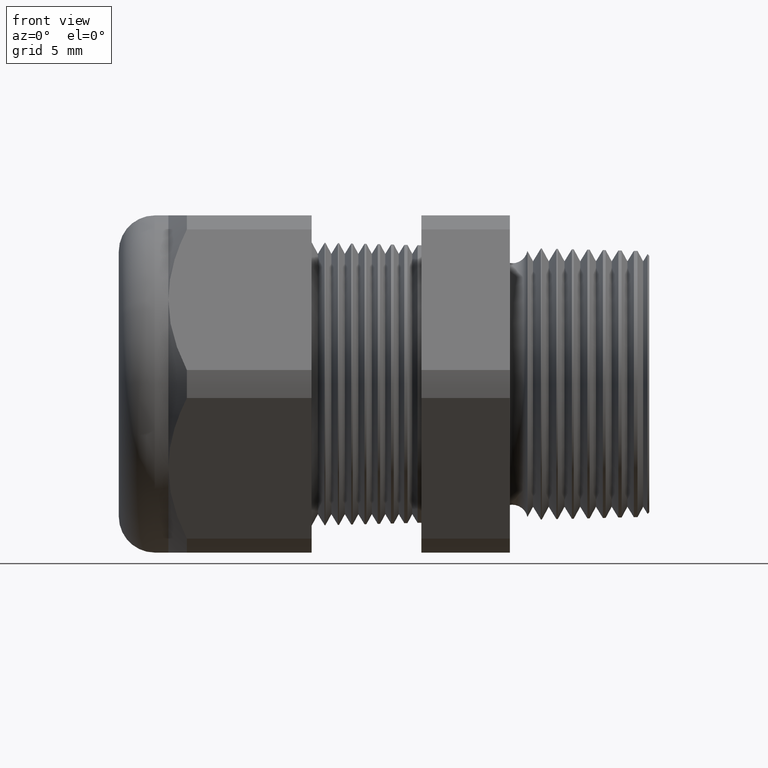
[diagram: clean part render]
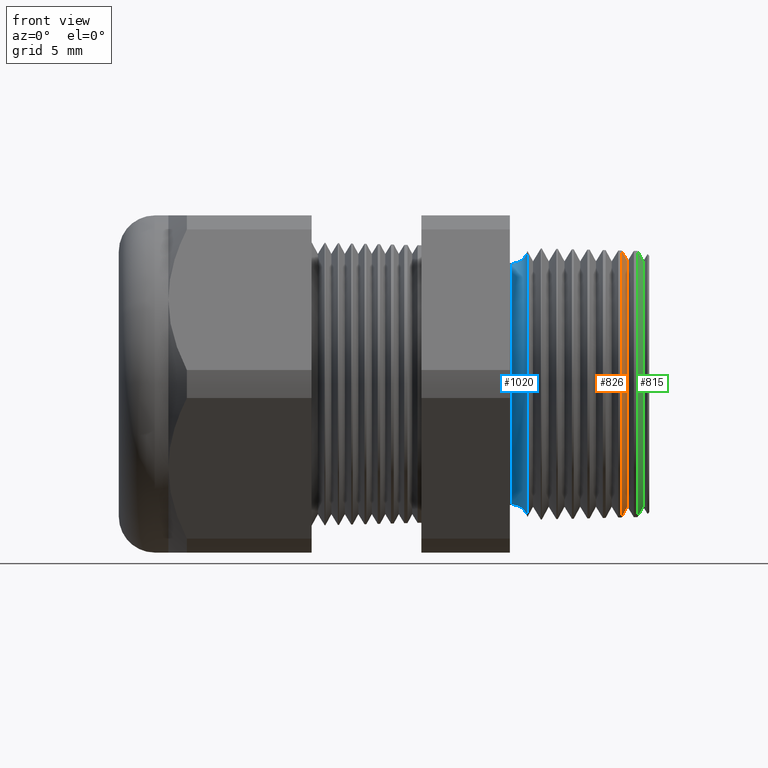
[diagram: same view with three faces highlighted in distinct colors, each labeled with its STEP entity id]
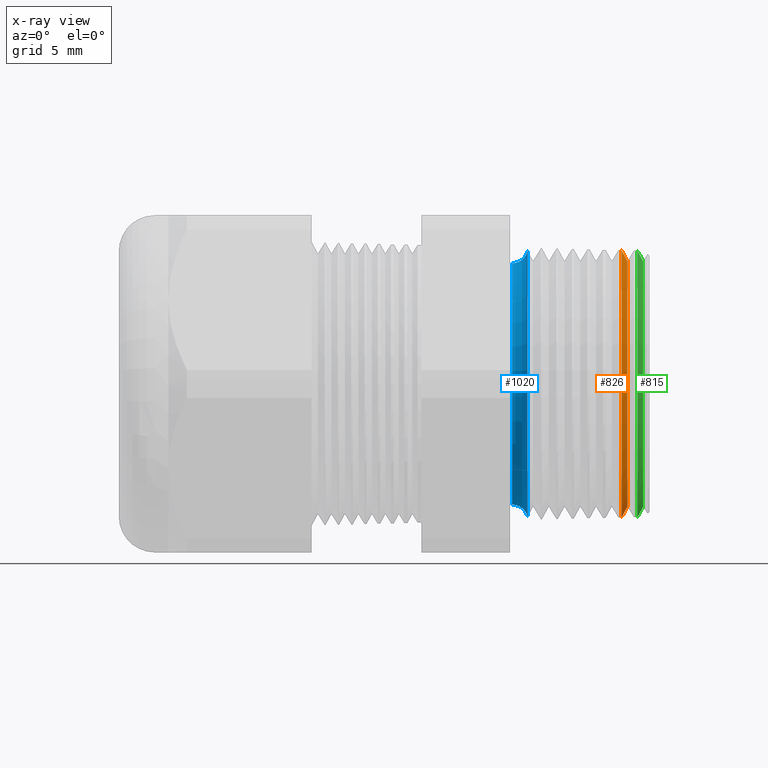
[diagram: x-ray of the same camera — body ghosted, the three highlighted faces saturated]
A machine part, front view with three faces highlighted in distinct colors.
The next image is the same camera in x-ray (body ghosted, the three faces saturated) — at least one of them is partly hidden behind the body in this view.
Their STEP definitions:

[orange] entity #826 — the highlighted conical surface has half-angle 61.5 deg.
#137 = EDGE_CURVE ( 'NONE', #181, #138, #1503, .T. ) ;
#138 = VERTEX_POINT ( 'NONE', #1494 ) ;
#141 = VERTEX_POINT ( 'NONE', #1488 ) ;
#143 = EDGE_CURVE ( 'NONE', #182, #141, #1487, .T. ) ;
#181 = VERTEX_POINT ( 'NONE', #1591 ) ;
#182 = VERTEX_POINT ( 'NONE', #1590 ) ;
#808 = ORIENTED_EDGE ( 'NONE', *, *, #4315, .T. ) ;
#826 = ADVANCED_FACE ( 'NONE', ( #2580 ), #2579, .T. ) ;
#827 = EDGE_LOOP ( 'NONE', ( #828, #829, #831, #808 ) ) ;
#828 = ORIENTED_EDGE ( 'NONE', *, *, #137, .F. ) ;
#829 = ORIENTED_EDGE ( 'NONE', *, *, #830, .F. ) ;
#830 = EDGE_CURVE ( 'NONE', #182, #181, #2574, .T. ) ;
#831 = ORIENTED_EDGE ( 'NONE', *, *, #143, .T. ) ;
#1484 = DIRECTION ( 'NONE',  ( -0.4771587602596187900, 0.0000000000000000000, 0.8788171126619597200 ) ) ;
#1485 = VECTOR ( 'NONE', #1484, 39.37007874015748900 ) ;
#1486 = CARTESIAN_POINT ( 'NONE',  ( -0.06499999999999996100, 0.0000000000000000000, 0.3034555137900915000 ) ) ;
#1487 = LINE ( 'NONE', #1486, #1485 ) ;
#1488 = CARTESIAN_POINT ( 'NONE',  ( -0.06146640013548344100, 0.0000000000000000000, 0.2969474324367333300 ) ) ;
#1494 = CARTESIAN_POINT ( 'NONE',  ( -0.06146640013548344100, 3.637715068184217400E-017, -0.2969474324367333300 ) ) ;
#1495 = DIRECTION ( 'NONE',  ( -0.4771587602596187900, 1.076240564057388000E-016, -0.8788171126619597200 ) ) ;
#1496 = VECTOR ( 'NONE', #1495, 39.37007874015748900 ) ;
#1497 = CARTESIAN_POINT ( 'NONE',  ( -0.06499999999999996100, 3.716258236466510600E-017, -0.3034555137900915000 ) ) ;
#1503 = LINE ( 'NONE', #1497, #1496 ) ;
#1590 = CARTESIAN_POINT ( 'NONE',  ( -0.04847073567907516500, 0.0000000000000000000, 0.2730123959962614800 ) ) ;
#1591 = CARTESIAN_POINT ( 'NONE',  ( -0.04847073567907516500, 3.489997397665207900E-017, -0.2730123959962614800 ) ) ;
#2571 = DIRECTION ( 'NONE',  ( 0.0000000000000000000, 0.0000000000000000000, -1.000000000000000000 ) ) ;
#2572 = DIRECTION ( 'NONE',  ( 1.000000000000000000, 0.0000000000000000000, 0.0000000000000000000 ) ) ;
#2573 = AXIS2_PLACEMENT_3D ( 'NONE', #2578, #2572, #2571 ) ;
#2574 = CIRCLE ( 'NONE', #2573, 0.2730123959962614800 ) ;
#2575 = DIRECTION ( 'NONE',  ( 0.0000000000000000000, 0.0000000000000000000, 1.000000000000000000 ) ) ;
#2576 = DIRECTION ( 'NONE',  ( -1.000000000000000000, 0.0000000000000000000, 0.0000000000000000000 ) ) ;
#2577 = AXIS2_PLACEMENT_3D ( 'NONE', #2585, #2576, #2575 ) ;
#2578 = CARTESIAN_POINT ( 'NONE',  ( -0.04847073567907516500, 0.0000000000000000000, 0.0000000000000000000 ) ) ;
#2579 = CONICAL_SURFACE ( 'NONE', #2577, 0.3034555137900915000, 1.073377489976501000 ) ;
#2580 = FACE_OUTER_BOUND ( 'NONE', #827, .T. ) ;
#2585 = CARTESIAN_POINT ( 'NONE',  ( -0.06499999999999996100, 0.0000000000000000000, 0.0000000000000000000 ) ) ;
#3794 = DIRECTION ( 'NONE',  ( 0.0000000000000000000, 0.0000000000000000000, 1.000000000000000000 ) ) ;
#3795 = DIRECTION ( 'NONE',  ( 1.000000000000000000, 0.0000000000000000000, 0.0000000000000000000 ) ) ;
#3796 = AXIS2_PLACEMENT_3D ( 'NONE', #3802, #3795, #3794 ) ;
#3797 = CIRCLE ( 'NONE', #3796, 0.2969474324367333300 ) ;
#3802 = CARTESIAN_POINT ( 'NONE',  ( -0.06146640013548344100, 0.0000000000000000000, 0.0000000000000000000 ) ) ;
#4315 = EDGE_CURVE ( 'NONE', #141, #138, #3797, .T. ) ;

[blue] entity #1020 — the highlighted toroidal blend (fillet) surface has major radius 7.7078 mm and minor (blend) radius 0.889 mm.
#1020 = ADVANCED_FACE ( 'NONE', ( #2944 ), #2939, .F. ) ;
#1021 = EDGE_LOOP ( 'NONE', ( #1022, #1023, #1025, #1026 ) ) ;
#1022 = ORIENTED_EDGE ( 'NONE', *, *, #1064, .T. ) ;
#1023 = ORIENTED_EDGE ( 'NONE', *, *, #1024, .T. ) ;
#1024 = EDGE_CURVE ( 'NONE', #1062, #1059, #2934, .T. ) ;
#1025 = ORIENTED_EDGE ( 'NONE', *, *, #1057, .F. ) ;
#1026 = ORIENTED_EDGE ( 'NONE', *, *, #1027, .F. ) ;
#1027 = EDGE_CURVE ( 'NONE', #1065, #1058, #2929, .T. ) ;
#1057 = EDGE_CURVE ( 'NONE', #1058, #1059, #3008, .T. ) ;
#1058 = VERTEX_POINT ( 'NONE', #3003 ) ;
#1059 = VERTEX_POINT ( 'NONE', #3002 ) ;
#1062 = VERTEX_POINT ( 'NONE', #2996 ) ;
#1064 = EDGE_CURVE ( 'NONE', #1065, #1062, #2995, .T. ) ;
#1065 = VERTEX_POINT ( 'NONE', #2990 ) ;
#2925 = DIRECTION ( 'NONE',  ( 0.0000000000000000000, 0.0000000000000000000, 1.000000000000000000 ) ) ;
#2926 = DIRECTION ( 'NONE',  ( 1.000000000000000000, 0.0000000000000000000, 0.0000000000000000000 ) ) ;
#2927 = CARTESIAN_POINT ( 'NONE',  ( -0.2708463023710465100, 0.0000000000000000000, 0.0000000000000000000 ) ) ;
#2928 = AXIS2_PLACEMENT_3D ( 'NONE', #2927, #2926, #2925 ) ;
#2929 = CIRCLE ( 'NONE', #2928, 0.2958053544276990100 ) ;
#2930 = DIRECTION ( 'NONE',  ( 0.0000000000000000000, 0.0000000000000000000, -1.000000000000000000 ) ) ;
#2931 = DIRECTION ( 'NONE',  ( 1.000000000000000000, 0.0000000000000000000, 0.0000000000000000000 ) ) ;
#2932 = CARTESIAN_POINT ( 'NONE',  ( -0.3049999999999999400, 0.0000000000000000000, 0.0000000000000000000 ) ) ;
#2933 = AXIS2_PLACEMENT_3D ( 'NONE', #2932, #2931, #2930 ) ;
#2934 = CIRCLE ( 'NONE', #2933, 0.2684555137900915300 ) ;
#2935 = DIRECTION ( 'NONE',  ( 0.0000000000000000000, 0.0000000000000000000, -1.000000000000000000 ) ) ;
#2936 = DIRECTION ( 'NONE',  ( 1.000000000000000000, 0.0000000000000000000, 0.0000000000000000000 ) ) ;
#2937 = CARTESIAN_POINT ( 'NONE',  ( -0.3049999999999999400, 0.0000000000000000000, 0.0000000000000000000 ) ) ;
#2938 = AXIS2_PLACEMENT_3D ( 'NONE', #2937, #2936, #2935 ) ;
#2939 = TOROIDAL_SURFACE ( 'NONE', #2938, 0.3034555137900915000, 0.03499999999999994800 ) ;
#2944 = FACE_OUTER_BOUND ( 'NONE', #1021, .T. ) ;
#2990 = CARTESIAN_POINT ( 'NONE',  ( -0.2708463023710465100, 0.0000000000000000000, 0.2958053544276990100 ) ) ;
#2991 = DIRECTION ( 'NONE',  ( 0.0000000000000000000, 1.224646799147352700E-016, 1.000000000000000000 ) ) ;
#2992 = DIRECTION ( 'NONE',  ( 0.0000000000000000000, 1.000000000000000000, -1.224646799147353200E-016 ) ) ;
#2993 = CARTESIAN_POINT ( 'NONE',  ( -0.3049999999999999400, 3.716258236466510600E-017, 0.3034555137900915000 ) ) ;
#2994 = AXIS2_PLACEMENT_3D ( 'NONE', #2993, #2992, #2991 ) ;
#2995 = CIRCLE ( 'NONE', #2994, 0.03499999999999996900 ) ;
#2996 = CARTESIAN_POINT ( 'NONE',  ( -0.3049999999999999400, 3.287631856764937300E-017, 0.2684555137900915300 ) ) ;
#3002 = CARTESIAN_POINT ( 'NONE',  ( -0.3049999999999999400, 0.0000000000000000000, -0.2684555137900915300 ) ) ;
#3003 = CARTESIAN_POINT ( 'NONE',  ( -0.2708463023710465100, 3.622570804705299400E-017, -0.2958053544276990100 ) ) ;
#3004 = DIRECTION ( 'NONE',  ( 0.0000000000000000000, 0.0000000000000000000, -1.000000000000000000 ) ) ;
#3005 = DIRECTION ( 'NONE',  ( 0.0000000000000000000, -1.000000000000000000, 0.0000000000000000000 ) ) ;
#3006 = CARTESIAN_POINT ( 'NONE',  ( -0.3049999999999999400, 0.0000000000000000000, -0.3034555137900915000 ) ) ;
#3007 = AXIS2_PLACEMENT_3D ( 'NONE', #3006, #3005, #3004 ) ;
#3008 = CIRCLE ( 'NONE', #3007, 0.03499999999999996900 ) ;

[green] entity #815 — the highlighted conical surface has half-angle 61.5 deg.
#158 = EDGE_CURVE ( 'NONE', #1011, #1033, #1523, .T. ) ;
#327 = EDGE_CURVE ( 'NONE', #1033, #1037, #1886, .T. ) ;
#815 = ADVANCED_FACE ( 'NONE', ( #2534 ), #2533, .T. ) ;
#816 = EDGE_LOOP ( 'NONE', ( #817, #818, #870, #871 ) ) ;
#817 = ORIENTED_EDGE ( 'NONE', *, *, #1038, .F. ) ;
#818 = ORIENTED_EDGE ( 'NONE', *, *, #819, .F. ) ;
#819 = EDGE_CURVE ( 'NONE', #1011, #1010, #2529, .T. ) ;
#870 = ORIENTED_EDGE ( 'NONE', *, *, #158, .T. ) ;
#871 = ORIENTED_EDGE ( 'NONE', *, *, #327, .T. ) ;
#1010 = VERTEX_POINT ( 'NONE', #2889 ) ;
#1011 = VERTEX_POINT ( 'NONE', #2888 ) ;
#1033 = VERTEX_POINT ( 'NONE', #2973 ) ;
#1037 = VERTEX_POINT ( 'NONE', #2967 ) ;
#1038 = EDGE_CURVE ( 'NONE', #1010, #1037, #2966, .T. ) ;
#1520 = DIRECTION ( 'NONE',  ( -0.4771587602596187900, 0.0000000000000000000, 0.8788171126619597200 ) ) ;
#1521 = VECTOR ( 'NONE', #1520, 39.37007874015748900 ) ;
#1522 = CARTESIAN_POINT ( 'NONE',  ( -0.02999999999999995400, 0.0000000000000000000, 0.3034555137900915000 ) ) ;
#1523 = LINE ( 'NONE', #1522, #1521 ) ;
#1828 = CARTESIAN_POINT ( 'NONE',  ( -0.02596160015483822700, 0.0000000000000000000, 0.0000000000000000000 ) ) ;
#1883 = DIRECTION ( 'NONE',  ( 0.0000000000000000000, 0.0000000000000000000, 1.000000000000000000 ) ) ;
#1884 = DIRECTION ( 'NONE',  ( 1.000000000000000000, 0.0000000000000000000, 0.0000000000000000000 ) ) ;
#1885 = AXIS2_PLACEMENT_3D ( 'NONE', #1828, #1884, #1883 ) ;
#1886 = CIRCLE ( 'NONE', #1885, 0.2960177065291107500 ) ;
#2529 = CIRCLE ( 'NONE', #2590, 0.2730123959962614800 ) ;
#2530 = DIRECTION ( 'NONE',  ( 0.0000000000000000000, 0.0000000000000000000, 1.000000000000000000 ) ) ;
#2531 = DIRECTION ( 'NONE',  ( -1.000000000000000000, 0.0000000000000000000, 0.0000000000000000000 ) ) ;
#2532 = AXIS2_PLACEMENT_3D ( 'NONE', #2539, #2531, #2530 ) ;
#2533 = CONICAL_SURFACE ( 'NONE', #2532, 0.3034555137900915000, 1.073377489976501000 ) ;
#2534 = FACE_OUTER_BOUND ( 'NONE', #816, .T. ) ;
#2539 = CARTESIAN_POINT ( 'NONE',  ( -0.02999999999999995400, 0.0000000000000000000, 0.0000000000000000000 ) ) ;
#2587 = DIRECTION ( 'NONE',  ( 0.0000000000000000000, 0.0000000000000000000, -1.000000000000000000 ) ) ;
#2588 = DIRECTION ( 'NONE',  ( 1.000000000000000000, 0.0000000000000000000, 0.0000000000000000000 ) ) ;
#2589 = CARTESIAN_POINT ( 'NONE',  ( -0.01347073567907516200, 0.0000000000000000000, 0.0000000000000000000 ) ) ;
#2590 = AXIS2_PLACEMENT_3D ( 'NONE', #2589, #2588, #2587 ) ;
#2888 = CARTESIAN_POINT ( 'NONE',  ( -0.01347073567907516200, 0.0000000000000000000, 0.2730123959962614800 ) ) ;
#2889 = CARTESIAN_POINT ( 'NONE',  ( -0.01347073567907516200, 3.484304468380936000E-017, -0.2730123959962614800 ) ) ;
#2963 = DIRECTION ( 'NONE',  ( -0.4771587602596187900, 1.076240564057388000E-016, -0.8788171126619597200 ) ) ;
#2964 = VECTOR ( 'NONE', #2963, 39.37007874015748900 ) ;
#2965 = CARTESIAN_POINT ( 'NONE',  ( -0.02999999999999995400, 3.716258236466510600E-017, -0.3034555137900915000 ) ) ;
#2966 = LINE ( 'NONE', #2965, #2964 ) ;
#2967 = CARTESIAN_POINT ( 'NONE',  ( -0.02596160015483822700, 3.626498782457903700E-017, -0.2960177065291107500 ) ) ;
#2973 = CARTESIAN_POINT ( 'NONE',  ( -0.02596160015483822700, 0.0000000000000000000, 0.2960177065291107500 ) ) ;